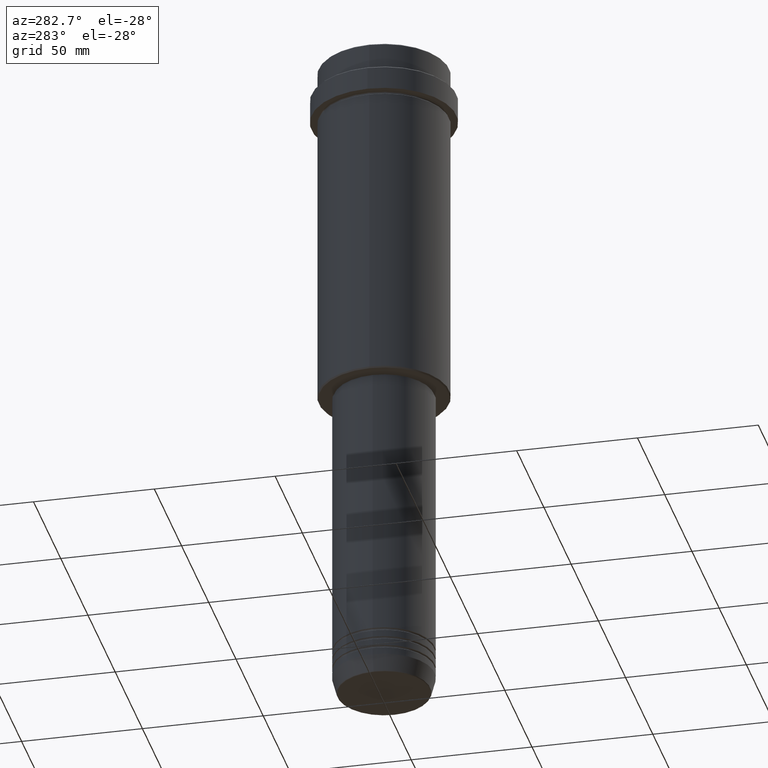
[diagram: clean part render]
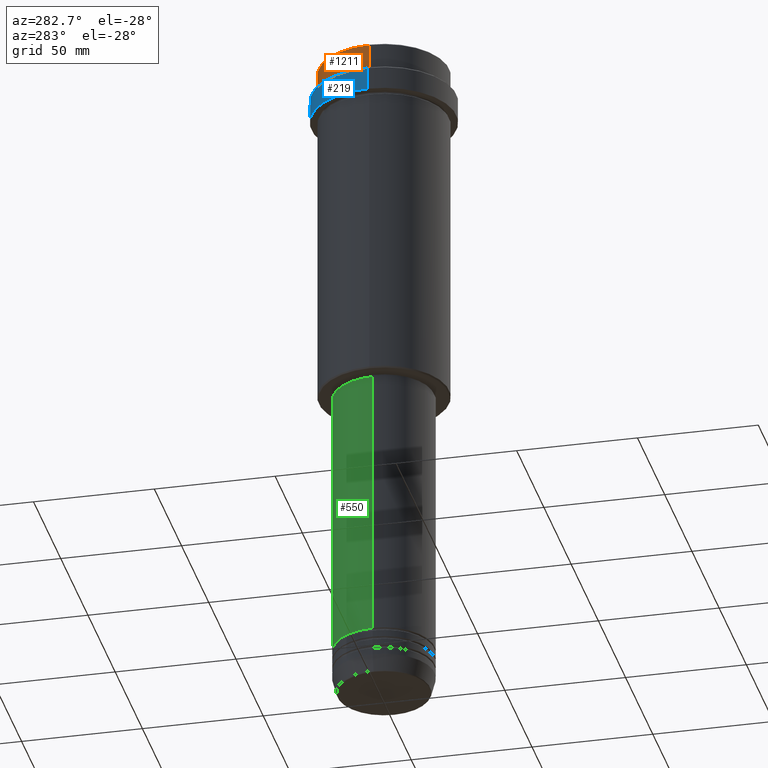
[diagram: same view with three faces highlighted in distinct colors, each labeled with its STEP entity id]
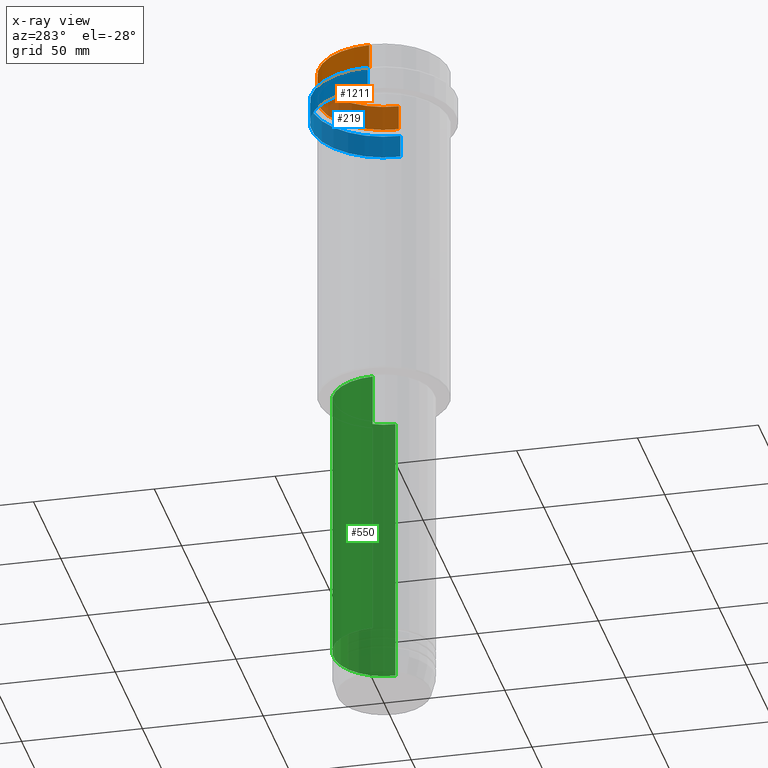
[diagram: x-ray of the same camera — body ghosted, the three highlighted faces saturated]
A machine part, auxiliary view with three faces highlighted in distinct colors.
The next image is the same camera in x-ray (body ghosted, the three faces saturated) — at least one of them is partly hidden behind the body in this view.
Their STEP definitions:

[orange] entity #1211 — the highlighted cylindrical surface (partial cylindrical patch) has radius 27 mm, axis along (-0, -0, 1).
#24 = VECTOR ( 'NONE', #1411, 1000.000000000000000 ) ;
#28 = CARTESIAN_POINT ( 'NONE',  ( 26.99999999999999645, 0.000000000000000000, -11.00000000000000178 ) ) ;
#51 = CARTESIAN_POINT ( 'NONE',  ( 0.000000000000000000, 0.000000000000000000, -0.5000000000000038858 ) ) ;
#67 = CARTESIAN_POINT ( 'NONE',  ( -26.99999999999999645, 3.306546357697853339E-15, -11.00000000000000178 ) ) ;
#88 = DIRECTION ( 'NONE',  ( -0.000000000000000000, -0.000000000000000000, 1.000000000000000000 ) ) ;
#145 = AXIS2_PLACEMENT_3D ( 'NONE', #1195, #660, #655 ) ;
#155 = CARTESIAN_POINT ( 'NONE',  ( 26.99999999999999645, 0.000000000000000000, 0.000000000000000000 ) ) ;
#181 = ORIENTED_EDGE ( 'NONE', *, *, #1409, .T. ) ;
#193 = CARTESIAN_POINT ( 'NONE',  ( 0.000000000000000000, 0.000000000000000000, 0.000000000000000000 ) ) ;
#207 = VERTEX_POINT ( 'NONE', #1227 ) ;
#245 = EDGE_CURVE ( 'NONE', #491, #207, #1092, .T. ) ;
#291 = ORIENTED_EDGE ( 'NONE', *, *, #854, .T. ) ;
#331 = EDGE_CURVE ( 'NONE', #797, #1091, #680, .T. ) ;
#346 = CIRCLE ( 'NONE', #365, 26.99999999999999645 ) ;
#365 = AXIS2_PLACEMENT_3D ( 'NONE', #51, #466, #1321 ) ;
#452 = VECTOR ( 'NONE', #461, 1000.000000000000000 ) ;
#461 = DIRECTION ( 'NONE',  ( -0.000000000000000000, -0.000000000000000000, 1.000000000000000000 ) ) ;
#466 = DIRECTION ( 'NONE',  ( 0.000000000000000000, 0.000000000000000000, -1.000000000000000000 ) ) ;
#475 = ORIENTED_EDGE ( 'NONE', *, *, #245, .T. ) ;
#491 = VERTEX_POINT ( 'NONE', #67 ) ;
#548 = AXIS2_PLACEMENT_3D ( 'NONE', #193, #88, #707 ) ;
#549 = CIRCLE ( 'NONE', #145, 26.99999999999999645 ) ;
#630 = CYLINDRICAL_SURFACE ( 'NONE', #548, 26.99999999999999645 ) ;
#655 = DIRECTION ( 'NONE',  ( 1.000000000000000000, 0.000000000000000000, 0.000000000000000000 ) ) ;
#660 = DIRECTION ( 'NONE',  ( -0.000000000000000000, -0.000000000000000000, 1.000000000000000000 ) ) ;
#672 = CARTESIAN_POINT ( 'NONE',  ( 26.99999999999999645, 0.000000000000000000, -0.5000000000000038858 ) ) ;
#680 = LINE ( 'NONE', #155, #452 ) ;
#707 = DIRECTION ( 'NONE',  ( 1.000000000000000000, 0.000000000000000000, 0.000000000000000000 ) ) ;
#797 = VERTEX_POINT ( 'NONE', #28 ) ;
#854 = EDGE_CURVE ( 'NONE', #207, #1091, #346, .T. ) ;
#884 = ORIENTED_EDGE ( 'NONE', *, *, #331, .F. ) ;
#980 = CARTESIAN_POINT ( 'NONE',  ( -26.99999999999999645, 3.306546357697853339E-15, 0.000000000000000000 ) ) ;
#1091 = VERTEX_POINT ( 'NONE', #672 ) ;
#1092 = LINE ( 'NONE', #980, #24 ) ;
#1195 = CARTESIAN_POINT ( 'NONE',  ( 0.000000000000000000, 0.000000000000000000, -11.00000000000000178 ) ) ;
#1211 = ADVANCED_FACE ( 'NONE', ( #1396 ), #630, .T. ) ;
#1227 = CARTESIAN_POINT ( 'NONE',  ( -26.99999999999999645, 3.306546357697853339E-15, -0.5000000000000038858 ) ) ;
#1321 = DIRECTION ( 'NONE',  ( 1.000000000000000000, 0.000000000000000000, 0.000000000000000000 ) ) ;
#1364 = EDGE_LOOP ( 'NONE', ( #181, #475, #291, #884 ) ) ;
#1396 = FACE_OUTER_BOUND ( 'NONE', #1364, .T. ) ;
#1409 = EDGE_CURVE ( 'NONE', #797, #491, #549, .T. ) ;
#1411 = DIRECTION ( 'NONE',  ( -0.000000000000000000, -0.000000000000000000, 1.000000000000000000 ) ) ;

[blue] entity #219 — the highlighted cylindrical surface (partial cylindrical patch) has radius 30 mm, axis along (-0, -0, 1).
#15 = DIRECTION ( 'NONE',  ( 1.000000000000000000, 0.000000000000000000, 0.000000000000000000 ) ) ;
#16 = CARTESIAN_POINT ( 'NONE',  ( 0.000000000000000000, 0.000000000000000000, 0.000000000000000000 ) ) ;
#32 = EDGE_CURVE ( 'NONE', #271, #1254, #868, .T. ) ;
#73 = CARTESIAN_POINT ( 'NONE',  ( 30.00000000000000000, 0.000000000000000000, -12.49999999999998224 ) ) ;
#75 = CARTESIAN_POINT ( 'NONE',  ( -30.00000000000000000, 3.673940397442059178E-15, 0.000000000000000000 ) ) ;
#172 = AXIS2_PLACEMENT_3D ( 'NONE', #1002, #1081, #15 ) ;
#198 = DIRECTION ( 'NONE',  ( 1.000000000000000000, 0.000000000000000000, 0.000000000000000000 ) ) ;
#219 = ADVANCED_FACE ( 'NONE', ( #444 ), #1004, .T. ) ;
#220 = DIRECTION ( 'NONE',  ( 1.000000000000000000, 0.000000000000000000, 0.000000000000000000 ) ) ;
#227 = VERTEX_POINT ( 'NONE', #1082 ) ;
#238 = CIRCLE ( 'NONE', #172, 29.99999999999999645 ) ;
#271 = VERTEX_POINT ( 'NONE', #535 ) ;
#304 = LINE ( 'NONE', #1387, #1375 ) ;
#395 = DIRECTION ( 'NONE',  ( -0.000000000000000000, -0.000000000000000000, 1.000000000000000000 ) ) ;
#400 = ORIENTED_EDGE ( 'NONE', *, *, #568, .T. ) ;
#444 = FACE_OUTER_BOUND ( 'NONE', #877, .T. ) ;
#490 = LINE ( 'NONE', #75, #688 ) ;
#508 = CARTESIAN_POINT ( 'NONE',  ( 0.000000000000000000, 0.000000000000000000, -12.49999999999998224 ) ) ;
#513 = DIRECTION ( 'NONE',  ( -0.000000000000000000, -0.000000000000000000, 1.000000000000000000 ) ) ;
#535 = CARTESIAN_POINT ( 'NONE',  ( -30.00000000000000000, 3.673940397442059178E-15, -12.49999999999998224 ) ) ;
#568 = EDGE_CURVE ( 'NONE', #1124, #271, #490, .T. ) ;
#591 = ORIENTED_EDGE ( 'NONE', *, *, #984, .F. ) ;
#625 = DIRECTION ( 'NONE',  ( 0.000000000000000000, 0.000000000000000000, -1.000000000000000000 ) ) ;
#683 = EDGE_CURVE ( 'NONE', #227, #1124, #238, .T. ) ;
#688 = VECTOR ( 'NONE', #513, 1000.000000000000000 ) ;
#868 = CIRCLE ( 'NONE', #920, 30.00000000000000000 ) ;
#877 = EDGE_LOOP ( 'NONE', ( #1248, #400, #979, #591 ) ) ;
#890 = DIRECTION ( 'NONE',  ( -0.000000000000000000, -0.000000000000000000, 1.000000000000000000 ) ) ;
#920 = AXIS2_PLACEMENT_3D ( 'NONE', #508, #625, #198 ) ;
#979 = ORIENTED_EDGE ( 'NONE', *, *, #32, .T. ) ;
#984 = EDGE_CURVE ( 'NONE', #227, #1254, #304, .T. ) ;
#1002 = CARTESIAN_POINT ( 'NONE',  ( 0.000000000000000000, 0.000000000000000000, -22.00000000000000355 ) ) ;
#1004 = CYLINDRICAL_SURFACE ( 'NONE', #1325, 30.00000000000000000 ) ;
#1081 = DIRECTION ( 'NONE',  ( -0.000000000000000000, -0.000000000000000000, 1.000000000000000000 ) ) ;
#1082 = CARTESIAN_POINT ( 'NONE',  ( 29.99999999999999645, 0.000000000000000000, -22.00000000000000355 ) ) ;
#1124 = VERTEX_POINT ( 'NONE', #1359 ) ;
#1248 = ORIENTED_EDGE ( 'NONE', *, *, #683, .T. ) ;
#1254 = VERTEX_POINT ( 'NONE', #73 ) ;
#1325 = AXIS2_PLACEMENT_3D ( 'NONE', #16, #890, #220 ) ;
#1359 = CARTESIAN_POINT ( 'NONE',  ( -29.99999999999999645, 3.673940397442058389E-15, -22.00000000000000355 ) ) ;
#1375 = VECTOR ( 'NONE', #395, 1000.000000000000000 ) ;
#1387 = CARTESIAN_POINT ( 'NONE',  ( 30.00000000000000000, 0.000000000000000000, 0.000000000000000000 ) ) ;

[green] entity #550 — the highlighted cylindrical surface (partial cylindrical patch) has radius 21 mm, axis along (-0, -0, 1).
#137 = ORIENTED_EDGE ( 'NONE', *, *, #869, .F. ) ;
#143 = DIRECTION ( 'NONE',  ( 1.000000000000000000, 0.000000000000000000, 0.000000000000000000 ) ) ;
#189 = FACE_OUTER_BOUND ( 'NONE', #949, .T. ) ;
#246 = LINE ( 'NONE', #1114, #1291 ) ;
#317 = CARTESIAN_POINT ( 'NONE',  ( -21.00000000000000000, 2.571758278209441661E-15, -263.9999999999998863 ) ) ;
#350 = CARTESIAN_POINT ( 'NONE',  ( 20.99999999999999645, 0.000000000000000000, 0.000000000000000000 ) ) ;
#417 = ORIENTED_EDGE ( 'NONE', *, *, #811, .F. ) ;
#429 = CARTESIAN_POINT ( 'NONE',  ( 0.000000000000000000, 0.000000000000000000, -263.9999999999998863 ) ) ;
#437 = DIRECTION ( 'NONE',  ( 1.000000000000000000, 0.000000000000000000, 0.000000000000000000 ) ) ;
#470 = VERTEX_POINT ( 'NONE', #735 ) ;
#532 = CARTESIAN_POINT ( 'NONE',  ( 21.00000000000000000, 0.000000000000000000, -263.9999999999998863 ) ) ;
#550 = ADVANCED_FACE ( 'NONE', ( #189 ), #624, .T. ) ;
#556 = ORIENTED_EDGE ( 'NONE', *, *, #765, .T. ) ;
#571 = AXIS2_PLACEMENT_3D ( 'NONE', #429, #1417, #437 ) ;
#577 = DIRECTION ( 'NONE',  ( -0.000000000000000000, -0.000000000000000000, 1.000000000000000000 ) ) ;
#599 = EDGE_CURVE ( 'NONE', #1404, #619, #872, .T. ) ;
#619 = VERTEX_POINT ( 'NONE', #317 ) ;
#624 = CYLINDRICAL_SURFACE ( 'NONE', #970, 20.99999999999999645 ) ;
#690 = CIRCLE ( 'NONE', #874, 20.99999999999999645 ) ;
#708 = DIRECTION ( 'NONE',  ( -0.000000000000000000, -0.000000000000000000, 1.000000000000000000 ) ) ;
#735 = CARTESIAN_POINT ( 'NONE',  ( 20.99999999999999645, 0.000000000000000000, -149.0000000000001137 ) ) ;
#765 = EDGE_CURVE ( 'NONE', #619, #1362, #246, .T. ) ;
#774 = CARTESIAN_POINT ( 'NONE',  ( 0.000000000000000000, 0.000000000000000000, -149.0000000000001137 ) ) ;
#786 = DIRECTION ( 'NONE',  ( -0.000000000000000000, -0.000000000000000000, 1.000000000000000000 ) ) ;
#811 = EDGE_CURVE ( 'NONE', #470, #1362, #690, .T. ) ;
#818 = DIRECTION ( 'NONE',  ( 1.000000000000000000, 0.000000000000000000, 0.000000000000000000 ) ) ;
#853 = CARTESIAN_POINT ( 'NONE',  ( 0.000000000000000000, 0.000000000000000000, 0.000000000000000000 ) ) ;
#869 = EDGE_CURVE ( 'NONE', #1404, #470, #912, .T. ) ;
#872 = CIRCLE ( 'NONE', #571, 21.00000000000000000 ) ;
#874 = AXIS2_PLACEMENT_3D ( 'NONE', #774, #577, #143 ) ;
#912 = LINE ( 'NONE', #350, #1243 ) ;
#949 = EDGE_LOOP ( 'NONE', ( #1379, #556, #417, #137 ) ) ;
#970 = AXIS2_PLACEMENT_3D ( 'NONE', #853, #708, #818 ) ;
#1114 = CARTESIAN_POINT ( 'NONE',  ( -20.99999999999999645, 2.571758278209441267E-15, 0.000000000000000000 ) ) ;
#1243 = VECTOR ( 'NONE', #786, 1000.000000000000000 ) ;
#1291 = VECTOR ( 'NONE', #1336, 1000.000000000000000 ) ;
#1336 = DIRECTION ( 'NONE',  ( -0.000000000000000000, -0.000000000000000000, 1.000000000000000000 ) ) ;
#1362 = VERTEX_POINT ( 'NONE', #1413 ) ;
#1379 = ORIENTED_EDGE ( 'NONE', *, *, #599, .T. ) ;
#1404 = VERTEX_POINT ( 'NONE', #532 ) ;
#1413 = CARTESIAN_POINT ( 'NONE',  ( -20.99999999999999645, 2.571758278209441267E-15, -149.0000000000001137 ) ) ;
#1417 = DIRECTION ( 'NONE',  ( -0.000000000000000000, -0.000000000000000000, 1.000000000000000000 ) ) ;